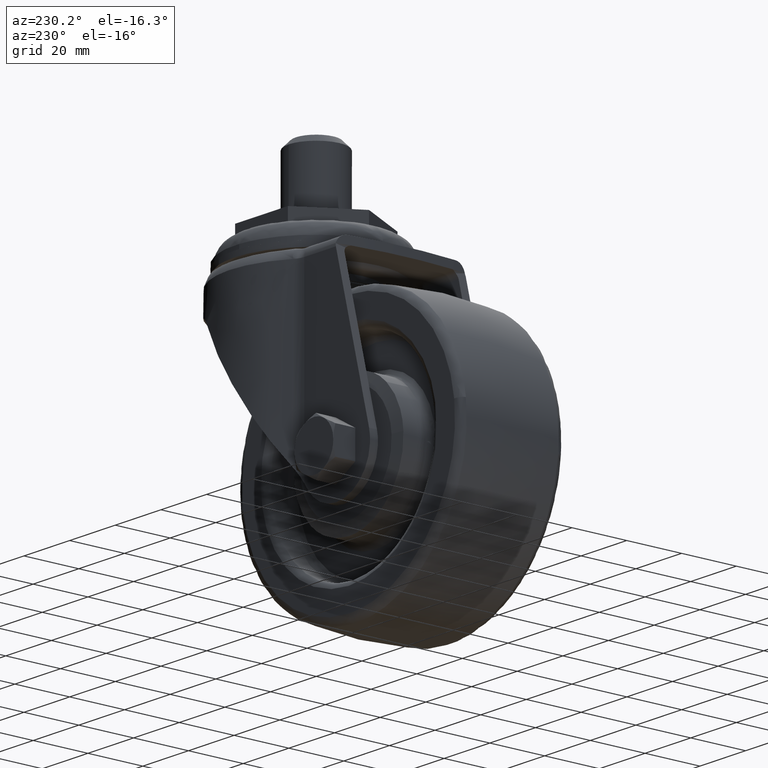
[diagram: clean part render]
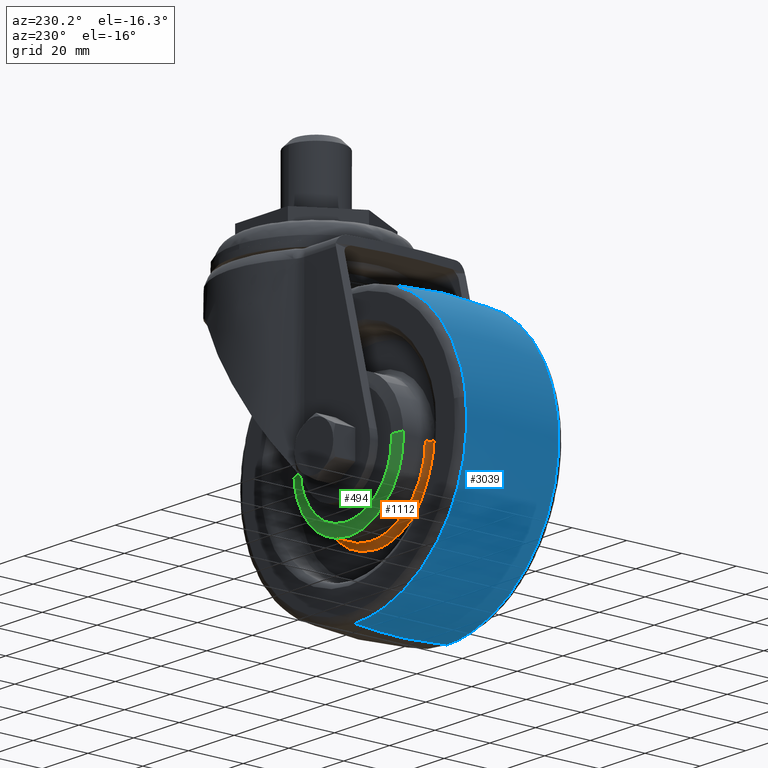
[diagram: same view with three faces highlighted in distinct colors, each labeled with its STEP entity id]
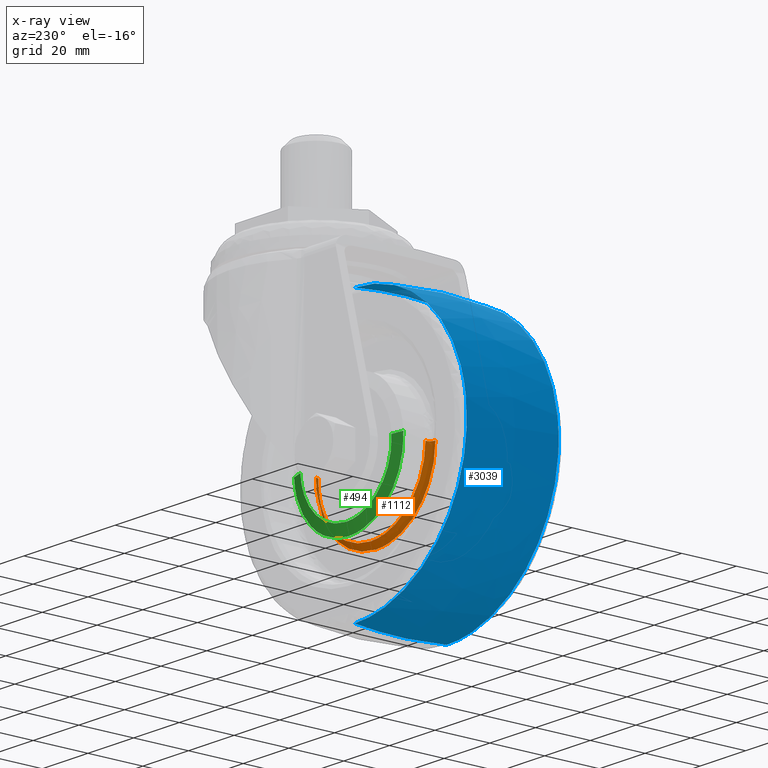
[diagram: x-ray of the same camera — body ghosted, the three highlighted faces saturated]
A machine part, auxiliary view with three faces highlighted in distinct colors.
The next image is the same camera in x-ray (body ghosted, the three faces saturated) — at least one of them is partly hidden behind the body in this view.
Their STEP definitions:

[orange] entity #1112 — the highlighted face is a freeform B-spline surface patch.
#738=CARTESIAN_POINT('',(-12.999999999999700,11.000000785135750,-73.500000000000000));
#739=VERTEX_POINT('',#738);
#753=CARTESIAN_POINT('',(-20.479490827088679,11.000000378035219,-90.908985515180206));
#754=VERTEX_POINT('',#753);
#755=CARTESIAN_POINT('',(-20.479490827088625,11.000000378035189,-90.908985515180262));
#756=CARTESIAN_POINT('',(-12.999999999999753,11.000000616475322,-83.811214268838569));
#757=CARTESIAN_POINT('',(-12.999999999999700,11.000000785135750,-73.500000000000000));
#765=(BOUNDED_CURVE()B_SPLINE_CURVE(2,(#755,#756,#757),.UNSPECIFIED.,.F.,.U.)B_SPLINE_CURVE_WITH_KNOTS((3,3),(0.121049521078662,0.250000000000000),.UNSPECIFIED.)CURVE()GEOMETRIC_REPRESENTATION_ITEM()RATIONAL_B_SPLINE_CURVE((0.853699661782680,0.848925116644772,1.0))REPRESENTATION_ITEM(''));
#766=EDGE_CURVE('',#754,#739,#765,.T.);
#796=CARTESIAN_POINT('',(-37.0,11.000000000000220,-97.499999999999986));
#797=VERTEX_POINT('',#796);
#798=CARTESIAN_POINT('',(-37.0,11.000000000000220,-97.499999999999986));
#799=CARTESIAN_POINT('',(-27.424971410987101,11.000000156618871,-97.500000000000000));
#800=CARTESIAN_POINT('',(-20.479490827088636,11.000000378035187,-90.908985515180262));
#808=(BOUNDED_CURVE()B_SPLINE_CURVE(2,(#798,#799,#800),.UNSPECIFIED.,.F.,.U.)B_SPLINE_CURVE_WITH_KNOTS((3,3),(0.0,0.121049521078662),.UNSPECIFIED.)CURVE()GEOMETRIC_REPRESENTATION_ITEM()RATIONAL_B_SPLINE_CURVE((1.0,0.858181664541776,0.853699661782680))REPRESENTATION_ITEM(''));
#809=EDGE_CURVE('',#797,#754,#808,.T.);
#811=CARTESIAN_POINT('',(-61.000000000000298,11.000000785135750,-73.500000000000000));
#812=VERTEX_POINT('',#811);
#813=CARTESIAN_POINT('',(-61.000000000000298,11.000000785135750,-73.500000000000000));
#814=CARTESIAN_POINT('',(-61.000000000000156,11.000000392567987,-97.500000000000000));
#815=CARTESIAN_POINT('',(-37.0,11.000000000000220,-97.499999999999986));
#823=(BOUNDED_CURVE()B_SPLINE_CURVE(2,(#813,#814,#815),.UNSPECIFIED.,.F.,.U.)B_SPLINE_CURVE_WITH_KNOTS((3,3),(0.750000000000000,1.0),.UNSPECIFIED.)CURVE()GEOMETRIC_REPRESENTATION_ITEM()RATIONAL_B_SPLINE_CURVE((1.0,0.707106781186548,1.0))REPRESENTATION_ITEM(''));
#824=EDGE_CURVE('',#812,#797,#823,.T.);
#990=CARTESIAN_POINT('',(-11.000000002226100,9.000000000000226,-73.500000000000000));
#991=VERTEX_POINT('',#990);
#1007=CARTESIAN_POINT('',(-11.000000002226098,9.000000000000220,-73.500000000000014));
#1008=CARTESIAN_POINT('',(-13.000000785135697,9.000000002226312,-73.500000000000014));
#1009=CARTESIAN_POINT('',(-12.999999999999849,11.000000785135752,-73.500000000000000));
#1017=(BOUNDED_CURVE()B_SPLINE_CURVE(2,(#1007,#1008,#1009),.UNSPECIFIED.,.F.,.U.)B_SPLINE_CURVE_WITH_KNOTS((3,3),(-1.726807298376659,-0.285994935133395),.UNSPECIFIED.)CURVE()GEOMETRIC_REPRESENTATION_ITEM()RATIONAL_B_SPLINE_CURVE((0.882788775808414,0.622603365904544,0.878205780589546))REPRESENTATION_ITEM(''));
#1018=EDGE_CURVE('',#991,#739,#1017,.T.);
#1023=CARTESIAN_POINT('',(-62.999999997773898,9.000000000000226,-73.500000000000000));
#1024=VERTEX_POINT('',#1023);
#1025=CARTESIAN_POINT('',(-62.999999997773891,9.000000000000219,-73.500000000000000));
#1026=CARTESIAN_POINT('',(-60.999999214864296,9.000000002226321,-73.500000000000000));
#1027=CARTESIAN_POINT('',(-61.000000000000149,11.000000785135756,-73.500000000000000));
#1035=(BOUNDED_CURVE()B_SPLINE_CURVE(2,(#1025,#1026,#1027),.UNSPECIFIED.,.F.,.U.)B_SPLINE_CURVE_WITH_KNOTS((3,3),(-1.726807298376652,-0.285994935133394),.UNSPECIFIED.)CURVE()GEOMETRIC_REPRESENTATION_ITEM()RATIONAL_B_SPLINE_CURVE((0.882788775808412,0.622603365904545,0.878205780589546))REPRESENTATION_ITEM(''));
#1036=EDGE_CURVE('',#1024,#812,#1035,.T.);
#1054=CARTESIAN_POINT('',(-63.138701300242516,9.004815309473795,-73.500000000000014));
#1055=CARTESIAN_POINT('',(-63.138701300242516,9.004815309473795,-99.638701300242516));
#1056=CARTESIAN_POINT('',(-37.000000000000007,9.004815309473795,-99.638701300242516));
#1057=CARTESIAN_POINT('',(-10.861298699757487,9.004815309473795,-99.638701300242516));
#1058=CARTESIAN_POINT('',(-10.861298699757480,9.004815309473795,-73.500000000000014));
#1059=CARTESIAN_POINT('',(-60.844520518092999,8.845328391302019,-73.500000000000014));
#1060=CARTESIAN_POINT('',(-60.844520518092985,8.845328391302020,-97.344520518092992));
#1061=CARTESIAN_POINT('',(-37.000000000000014,8.845328391302019,-97.344520518092992));
#1062=CARTESIAN_POINT('',(-13.155479481907019,8.845328391302020,-97.344520518092992));
#1063=CARTESIAN_POINT('',(-13.155479481907017,8.845328391302019,-73.500000000000014));
#1064=CARTESIAN_POINT('',(-61.004867444619862,11.139449225391965,-73.500000000000000));
#1065=CARTESIAN_POINT('',(-61.004867444619862,11.139449225391969,-97.504867444619862));
#1066=CARTESIAN_POINT('',(-37.000000000000007,11.139449225391965,-97.504867444619862));
#1067=CARTESIAN_POINT('',(-12.995132555380144,11.139449225391969,-97.504867444619876));
#1068=CARTESIAN_POINT('',(-12.995132555380138,11.139449225391965,-73.500000000000000));
#1076=(BOUNDED_SURFACE()B_SPLINE_SURFACE(2,2,((#1054,#1059,#1064),(#1055,#1060,#1065),(#1056,#1061,#1066),(#1057,#1062,#1067),(#1058,#1063,#1068)),.UNSPECIFIED.,.F.,.F.,.U.)B_SPLINE_SURFACE_WITH_KNOTS((3,2,3),(3,3),(0.0,43.308018325518809,86.616036651037618),(0.0,3.644741871542545),.UNSPECIFIED.)GEOMETRIC_REPRESENTATION_ITEM()RATIONAL_B_SPLINE_SURFACE(((0.910068213900272,0.595552862372997,0.905027350001820),(0.643515405391212,0.421119467539005,0.639950976345578),(0.910068213900272,0.595552862372997,0.905027350001820),(0.643515405391212,0.421119467539005,0.639950976345578),(0.910068213900272,0.595552862372997,0.905027350001820)))REPRESENTATION_ITEM('')SURFACE());
#1077=CARTESIAN_POINT('',(-37.0,9.000000000000220,-99.499999999999986));
#1078=VERTEX_POINT('',#1077);
#1079=CARTESIAN_POINT('',(-37.0,9.000000000000220,-99.499999999999986));
#1080=CARTESIAN_POINT('',(-11.000000001113047,9.000000000000224,-99.499999999999986));
#1081=CARTESIAN_POINT('',(-11.000000002226100,9.000000000000226,-73.500000000000000));
#1089=(BOUNDED_CURVE()B_SPLINE_CURVE(2,(#1079,#1080,#1081),.UNSPECIFIED.,.F.,.U.)B_SPLINE_CURVE_WITH_KNOTS((3,3),(0.0,0.250000000000000),.UNSPECIFIED.)CURVE()GEOMETRIC_REPRESENTATION_ITEM()RATIONAL_B_SPLINE_CURVE((1.0,0.707106781186547,1.0))REPRESENTATION_ITEM(''));
#1090=EDGE_CURVE('',#1078,#991,#1089,.T.);
#1091=ORIENTED_EDGE('',*,*,#1090,.F.);
#1092=CARTESIAN_POINT('',(-62.999999997773898,9.000000000000226,-73.500000000000000));
#1093=CARTESIAN_POINT('',(-62.999999998886956,9.000000000000224,-99.499999999999986));
#1094=CARTESIAN_POINT('',(-37.0,9.000000000000220,-99.499999999999986));
#1102=(BOUNDED_CURVE()B_SPLINE_CURVE(2,(#1092,#1093,#1094),.UNSPECIFIED.,.F.,.U.)B_SPLINE_CURVE_WITH_KNOTS((3,3),(0.750000000000000,1.0),.UNSPECIFIED.)CURVE()GEOMETRIC_REPRESENTATION_ITEM()RATIONAL_B_SPLINE_CURVE((1.0,0.707106781186547,1.0))REPRESENTATION_ITEM(''));
#1103=EDGE_CURVE('',#1024,#1078,#1102,.T.);
#1104=ORIENTED_EDGE('',*,*,#1103,.F.);
#1105=ORIENTED_EDGE('',*,*,#1036,.T.);
#1106=ORIENTED_EDGE('',*,*,#824,.T.);
#1107=ORIENTED_EDGE('',*,*,#809,.T.);
#1108=ORIENTED_EDGE('',*,*,#766,.T.);
#1109=ORIENTED_EDGE('',*,*,#1018,.F.);
#1110=EDGE_LOOP('',(#1091,#1104,#1105,#1106,#1107,#1108,#1109));
#1111=FACE_OUTER_BOUND('',#1110,.T.);
#1112=ADVANCED_FACE('',(#1111),#1076,.F.);

[blue] entity #3039 — the highlighted face is a freeform B-spline surface patch.
#2759=CARTESIAN_POINT('',(-37.0,16.779649867001449,-24.441476760499491));
#2760=VERTEX_POINT('',#2759);
#2791=CARTESIAN_POINT('',(-85.671681510103070,16.779649936100860,-67.351336726865696));
#2792=VERTEX_POINT('',#2791);
#2806=CARTESIAN_POINT('',(-37.0,16.779649867001449,-24.441476760499491));
#2807=CARTESIAN_POINT('',(-80.250905536474022,16.779649901544875,-24.441476722277141));
#2808=CARTESIAN_POINT('',(-85.671681510103070,16.779649936100864,-67.351336726865696));
#2816=(BOUNDED_CURVE()B_SPLINE_CURVE(2,(#2806,#2807,#2808),.UNSPECIFIED.,.F.,.U.)B_SPLINE_CURVE_WITH_KNOTS((3,3),(0.500000000000000,0.728321257017728),.UNSPECIFIED.)CURVE()GEOMETRIC_REPRESENTATION_ITEM()RATIONAL_B_SPLINE_CURVE((1.0,0.732505008434177,0.953608358630395))REPRESENTATION_ITEM(''));
#2817=EDGE_CURVE('',#2760,#2792,#2816,.T.);
#2845=CARTESIAN_POINT('',(-37.0,16.779649867030152,-122.558523239497300));
#2846=VERTEX_POINT('',#2845);
#2860=CARTESIAN_POINT('',(-85.671681510103070,16.779649936100864,-67.351336726865696));
#2861=CARTESIAN_POINT('',(-86.058522572680999,16.779649934185745,-70.413499338433269));
#2862=CARTESIAN_POINT('',(-86.058522553645460,16.779649932013349,-73.499999928078509));
#2863=CARTESIAN_POINT('',(-86.058522251084426,16.779649897484266,-122.558523205799740));
#2864=CARTESIAN_POINT('',(-37.0,16.779649867030152,-122.558523239497300));
#2872=(BOUNDED_CURVE()B_SPLINE_CURVE(2,(#2860,#2861,#2862,#2863,#2864),.UNSPECIFIED.,.F.,.U.)B_SPLINE_CURVE_WITH_KNOTS((3,2,3),(0.728321257017728,0.750000000000000,1.0),.UNSPECIFIED.)CURVE()GEOMETRIC_REPRESENTATION_ITEM()RATIONAL_B_SPLINE_CURVE((0.953608358630395,0.974601772752371,1.0,0.707106781186547,1.0))REPRESENTATION_ITEM(''));
#2873=EDGE_CURVE('',#2792,#2846,#2872,.T.);
#2915=CARTESIAN_POINT('',(-37.0,-16.779637920549199,-122.558524584321300));
#2916=VERTEX_POINT('',#2915);
#2917=CARTESIAN_POINT('',(-37.0,-16.779637920549199,-122.558524584321300));
#2918=CARTESIAN_POINT('',(-37.000000000000043,-12.776367559165900,-123.009180097572300));
#2919=CARTESIAN_POINT('',(-36.999999999999950,-1.586281364282039,-123.814258282421310));
#2920=CARTESIAN_POINT('',(-37.000000000000057,9.643407289933570,-123.362239167050400));
#2921=CARTESIAN_POINT('',(-37.0,16.779649867030152,-122.558523239497300));
#2922=B_SPLINE_CURVE_WITH_KNOTS('',3,(#2917,#2918,#2919,#2920,#2921),.UNSPECIFIED.,.F.,.U.,(4,1,4),(-2.801762E-009,12.085685451898700,33.629693436592888),.UNSPECIFIED.);
#2923=EDGE_CURVE('',#2916,#2846,#2922,.T.);
#2927=CARTESIAN_POINT('',(-37.0,-16.779637920490050,-24.441475415672009));
#2928=VERTEX_POINT('',#2927);
#2929=CARTESIAN_POINT('',(-37.0,-16.779637920490050,-24.441475415672009));
#2930=CARTESIAN_POINT('',(-36.999999999999979,-11.035836471647450,-23.794740682324061));
#2931=CARTESIAN_POINT('',(-37.000000000000128,0.176256226108277,-23.185630177677631));
#2932=CARTESIAN_POINT('',(-37.0,11.383937440151660,-23.833968678960542));
#2933=CARTESIAN_POINT('',(-37.0,16.779649867001449,-24.441476760499491));
#2934=B_SPLINE_CURVE_WITH_KNOTS('',3,(#2929,#2930,#2931,#2932,#2933),.UNSPECIFIED.,.F.,.U.,(4,1,4),(-2.802167E-009,17.340285091781460,33.629693436504482),.UNSPECIFIED.);
#2935=EDGE_CURVE('',#2928,#2760,#2934,.T.);
#2970=CARTESIAN_POINT('',(-37.000000000000007,-18.465704698484352,-24.640946697930492));
#2971=CARTESIAN_POINT('',(-37.0,-9.268100377648732,-23.500000000000007));
#2972=CARTESIAN_POINT('',(-37.0,-4.867810E-015,-23.500000000000011));
#2973=CARTESIAN_POINT('',(-37.000000000000014,9.268104124571597,-23.500000000000007));
#2974=CARTESIAN_POINT('',(-37.000000000000007,18.465712107046045,-24.640947616949777));
#2975=CARTESIAN_POINT('',(-85.859053302069498,-18.465704698484348,-24.640946697930502));
#2976=CARTESIAN_POINT('',(-86.999999999999986,-9.268100377648734,-23.500000000000018));
#2977=CARTESIAN_POINT('',(-86.999999999999986,-4.867810E-015,-23.500000000000018));
#2978=CARTESIAN_POINT('',(-86.999999999999972,9.268104124571599,-23.500000000000018));
#2979=CARTESIAN_POINT('',(-85.859052383050226,18.465712107046055,-24.640947616949781));
#2980=CARTESIAN_POINT('',(-85.859053302069526,-18.465704698484352,-73.500000000000000));
#2981=CARTESIAN_POINT('',(-86.999999999999986,-9.268100377648732,-73.500000000000000));
#2982=CARTESIAN_POINT('',(-87.0,-4.867810E-015,-73.500000000000000));
#2983=CARTESIAN_POINT('',(-87.0,9.268104124571597,-73.500000000000000));
#2984=CARTESIAN_POINT('',(-85.859052383050226,18.465712107046045,-73.500000000000000));
#2985=CARTESIAN_POINT('',(-85.859053302069498,-18.465704698484348,-122.359053302069530));
#2986=CARTESIAN_POINT('',(-86.999999999999986,-9.268100377648734,-123.500000000000000));
#2987=CARTESIAN_POINT('',(-86.999999999999986,-4.867810E-015,-123.499999999999990));
#2988=CARTESIAN_POINT('',(-86.999999999999972,9.268104124571599,-123.499999999999970));
#2989=CARTESIAN_POINT('',(-85.859052383050226,18.465712107046055,-122.359052383050210));
#2990=CARTESIAN_POINT('',(-37.000000000000007,-18.465704698484352,-122.359053302069500));
#2991=CARTESIAN_POINT('',(-37.0,-9.268100377648732,-123.500000000000000));
#2992=CARTESIAN_POINT('',(-37.0,-4.867810E-015,-123.500000000000000));
#2993=CARTESIAN_POINT('',(-37.000000000000014,9.268104124571597,-123.500000000000030));
#2994=CARTESIAN_POINT('',(-37.000000000000007,18.465712107046045,-122.359052383050180));
#3002=(BOUNDED_SURFACE()B_SPLINE_SURFACE(2,2,((#2970,#2975,#2980,#2985,#2990),(#2971,#2976,#2981,#2986,#2991),(#2972,#2977,#2982,#2987,#2992),(#2973,#2978,#2983,#2988,#2993),(#2974,#2979,#2984,#2989,#2994)),.UNSPECIFIED.,.F.,.F.,.U.)B_SPLINE_SURFACE_WITH_KNOTS((3,2,3),(3,2,3),(0.0,18.709207696205851,37.418422857757200),(0.0,82.842712474619006,165.685424949238010),.UNSPECIFIED.)GEOMETRIC_REPRESENTATION_ITEM()RATIONAL_B_SPLINE_SURFACE(((0.977858070588099,0.691450072750839,0.977858070588099,0.691450072750839,0.977858070588099),(0.986984865199306,0.697903691110920,0.986984865199306,0.697903691110920,0.986984865199306),(1.0,0.707106781186548,1.0,0.707106781186548,1.0),(0.986984860006009,0.697903687438704,0.986984860006009,0.697903687438704,0.986984860006009),(0.977858063304555,0.691450067600595,0.977858063304555,0.691450067600595,0.977858063304555)))REPRESENTATION_ITEM('')SURFACE());
#3003=ORIENTED_EDGE('',*,*,#2923,.F.);
#3004=CARTESIAN_POINT('',(-85.868843852252752,-16.779638064483009,-77.809849971039228));
#3005=VERTEX_POINT('',#3004);
#3006=CARTESIAN_POINT('',(-85.868843852252752,-16.779638064483009,-77.809849971039228));
#3007=CARTESIAN_POINT('',(-81.922360370646729,-16.779637992529587,-122.558524640269440));
#3008=CARTESIAN_POINT('',(-37.0,-16.779637920549199,-122.558524584321300));
#3016=(BOUNDED_CURVE()B_SPLINE_CURVE(2,(#3006,#3007,#3008),.UNSPECIFIED.,.F.,.U.)B_SPLINE_CURVE_WITH_KNOTS((3,3),(0.765281544351816,1.0),.UNSPECIFIED.)CURVE()GEOMETRIC_REPRESENTATION_ITEM()RATIONAL_B_SPLINE_CURVE((0.966381852339108,0.725010224041123,1.0))REPRESENTATION_ITEM(''));
#3017=EDGE_CURVE('',#3005,#2916,#3016,.T.);
#3018=ORIENTED_EDGE('',*,*,#3017,.F.);
#3019=CARTESIAN_POINT('',(-37.0,-16.779637920490050,-24.441475415672009));
#3020=CARTESIAN_POINT('',(-86.058522565243706,-16.779637986401720,-24.441475466903071));
#3021=CARTESIAN_POINT('',(-86.058523199632262,-16.779638058411681,-73.500000107175850));
#3022=CARTESIAN_POINT('',(-86.058523227552129,-16.779638061580890,-75.659098998873745));
#3023=CARTESIAN_POINT('',(-85.868843852252752,-16.779638064483009,-77.809849971039228));
#3031=(BOUNDED_CURVE()B_SPLINE_CURVE(2,(#3019,#3020,#3021,#3022,#3023),.UNSPECIFIED.,.F.,.U.)B_SPLINE_CURVE_WITH_KNOTS((3,2,3),(0.500000000000000,0.750000000000000,0.765281544351816),.UNSPECIFIED.)CURVE()GEOMETRIC_REPRESENTATION_ITEM()RATIONAL_B_SPLINE_CURVE((1.0,0.707106781186547,1.0,0.982096557145425,0.966381852339108))REPRESENTATION_ITEM(''));
#3032=EDGE_CURVE('',#2928,#3005,#3031,.T.);
#3033=ORIENTED_EDGE('',*,*,#3032,.F.);
#3034=ORIENTED_EDGE('',*,*,#2935,.T.);
#3035=ORIENTED_EDGE('',*,*,#2817,.T.);
#3036=ORIENTED_EDGE('',*,*,#2873,.T.);
#3037=EDGE_LOOP('',(#3003,#3018,#3033,#3034,#3035,#3036));
#3038=FACE_OUTER_BOUND('',#3037,.T.);
#3039=ADVANCED_FACE('',(#3038),#3002,.T.);

[green] entity #494 — the highlighted face is a freeform B-spline surface patch.
#192=CARTESIAN_POINT('',(-56.962695968451470,19.999999999994099,-72.279029209147126));
#193=VERTEX_POINT('',#192);
#194=CARTESIAN_POINT('',(-37.0,20.0,-93.500000000000000));
#195=VERTEX_POINT('',#194);
#196=CARTESIAN_POINT('',(-56.962695968451470,19.999999999994099,-72.279029209147126));
#197=CARTESIAN_POINT('',(-57.000000000023228,19.999999999994177,-72.888944733949430));
#198=CARTESIAN_POINT('',(-57.000000000022872,19.999999999994269,-73.499999999998593));
#199=CARTESIAN_POINT('',(-57.000000000011084,19.999999999997225,-93.499999999999318));
#200=CARTESIAN_POINT('',(-37.0,20.0,-93.500000000000000));
#208=(BOUNDED_CURVE()B_SPLINE_CURVE(2,(#196,#197,#198,#199,#200),.UNSPECIFIED.,.F.,.U.)B_SPLINE_CURVE_WITH_KNOTS((3,2,3),(0.739332962240635,0.750000000000000,1.0),.UNSPECIFIED.)CURVE()GEOMETRIC_REPRESENTATION_ITEM()RATIONAL_B_SPLINE_CURVE((0.976072041670344,0.987502787901820,1.0,0.707106781186548,1.0))REPRESENTATION_ITEM(''));
#209=EDGE_CURVE('',#193,#195,#208,.T.);
#226=CARTESIAN_POINT('',(-17.037304031548519,19.999999999994099,-74.720970790852860));
#227=VERTEX_POINT('',#226);
#243=CARTESIAN_POINT('',(-37.0,20.0,-93.500000000000000));
#244=CARTESIAN_POINT('',(-18.185878662019977,19.999999999997055,-93.500000000000753));
#245=CARTESIAN_POINT('',(-17.037304031548512,19.999999999994099,-74.720970790852860));
#253=(BOUNDED_CURVE()B_SPLINE_CURVE(2,(#243,#244,#245),.UNSPECIFIED.,.F.,.U.)B_SPLINE_CURVE_WITH_KNOTS((3,3),(0.0,0.239332962240635),.UNSPECIFIED.)CURVE()GEOMETRIC_REPRESENTATION_ITEM()RATIONAL_B_SPLINE_CURVE((1.0,0.719603993284728,0.976072041670344))REPRESENTATION_ITEM(''));
#254=EDGE_CURVE('',#195,#227,#253,.T.);
#361=CARTESIAN_POINT('',(-13.044764837834190,18.999999999983022,-74.965164949278602));
#362=VERTEX_POINT('',#361);
#380=CARTESIAN_POINT('',(-17.037304031548519,19.999999999994099,-74.720970790852860));
#381=CARTESIAN_POINT('',(-13.044764837834190,18.999999999983022,-74.965164949278602));
#382=QUASI_UNIFORM_CURVE('',1,(#380,#381),.UNSPECIFIED.,.F.,.U.);
#383=EDGE_CURVE('',#227,#362,#382,.T.);
#387=CARTESIAN_POINT('',(-60.955235162165813,18.999999999983022,-72.034835050721398));
#388=VERTEX_POINT('',#387);
#389=CARTESIAN_POINT('',(-56.962695968451470,19.999999999994099,-72.279029209147126));
#390=CARTESIAN_POINT('',(-60.955235162165813,18.999999999983022,-72.034835050721398));
#391=QUASI_UNIFORM_CURVE('',1,(#389,#390),.UNSPECIFIED.,.F.,.U.);
#392=EDGE_CURVE('',#193,#388,#391,.T.);
#425=CARTESIAN_POINT('',(-56.862882488595133,20.024999999999999,-72.285134063256351));
#426=CARTESIAN_POINT('',(-58.077748425338783,20.025000000000009,-92.148016551851484));
#427=CARTESIAN_POINT('',(-38.214865936743649,20.024999999999999,-93.362882488595133));
#428=CARTESIAN_POINT('',(-18.351983448148523,20.025000000000009,-94.577748425338797));
#429=CARTESIAN_POINT('',(-17.137117511404870,20.024999999999999,-74.714865936743649));
#430=CARTESIAN_POINT('',(-61.057543978963039,18.974374999999998,-72.028577575861107));
#431=CARTESIAN_POINT('',(-62.528966403101947,18.974375000000002,-96.086121554824146));
#432=CARTESIAN_POINT('',(-38.471422424138893,18.974374999999998,-97.557543978963039));
#433=CARTESIAN_POINT('',(-14.413878445175845,18.974375000000002,-99.028966403101933));
#434=CARTESIAN_POINT('',(-12.942456021036961,18.974374999999998,-74.971422424138893));
#442=(BOUNDED_SURFACE()B_SPLINE_SURFACE(2,1,((#425,#430),(#426,#431),(#427,#432),(#428,#433),(#429,#434)),.UNSPECIFIED.,.F.,.F.,.U.)B_SPLINE_SURFACE_WITH_KNOTS((3,2,3),(2,2),(0.0,39.934329548390103,79.868659096780192),(0.0,4.331837847914573),.UNSPECIFIED.)GEOMETRIC_REPRESENTATION_ITEM()RATIONAL_B_SPLINE_SURFACE(((1.0,1.0),(0.707106781186548,0.707106781186548),(1.0,1.0),(0.707106781186548,0.707106781186548),(1.0,1.0)))REPRESENTATION_ITEM('')SURFACE());
#443=CARTESIAN_POINT('',(-37.0,19.0,-97.500000000000000));
#444=VERTEX_POINT('',#443);
#445=CARTESIAN_POINT('',(-20.479491158632911,18.999999999991420,-90.908985829821034));
#446=VERTEX_POINT('',#445);
#447=CARTESIAN_POINT('',(-37.0,19.0,-97.500000000000000));
#448=CARTESIAN_POINT('',(-27.424971675905887,18.999999999996387,-97.499999999996348));
#449=CARTESIAN_POINT('',(-20.479491158632921,18.999999999991420,-90.908985829821034));
#457=(BOUNDED_CURVE()B_SPLINE_CURVE(2,(#447,#448,#449),.UNSPECIFIED.,.F.,.U.)B_SPLINE_CURVE_WITH_KNOTS((3,3),(0.0,0.121049518204366),.UNSPECIFIED.)CURVE()GEOMETRIC_REPRESENTATION_ITEM()RATIONAL_B_SPLINE_CURVE((1.0,0.858181667909222,0.853699661995528))REPRESENTATION_ITEM(''));
#458=EDGE_CURVE('',#444,#446,#457,.T.);
#459=ORIENTED_EDGE('',*,*,#458,.F.);
#460=CARTESIAN_POINT('',(-60.955235162165799,18.999999999983014,-72.034835050721398));
#461=CARTESIAN_POINT('',(-61.000000000066805,18.999999999983267,-72.766733680610216));
#462=CARTESIAN_POINT('',(-61.000000000065768,18.999999999983519,-73.499999999995978));
#463=CARTESIAN_POINT('',(-61.000000000031889,18.999999999992006,-97.499999999998053));
#464=CARTESIAN_POINT('',(-37.0,19.0,-97.500000000000000));
#472=(BOUNDED_CURVE()B_SPLINE_CURVE(2,(#460,#461,#462,#463,#464),.UNSPECIFIED.,.F.,.U.)B_SPLINE_CURVE_WITH_KNOTS((3,2,3),(0.739332962238814,0.750000000000000,1.0),.UNSPECIFIED.)CURVE()GEOMETRIC_REPRESENTATION_ITEM()RATIONAL_B_SPLINE_CURVE((0.976072041666442,0.987502787899687,1.0,0.707106781186548,1.0))REPRESENTATION_ITEM(''));
#473=EDGE_CURVE('',#388,#444,#472,.T.);
#474=ORIENTED_EDGE('',*,*,#473,.F.);
#475=ORIENTED_EDGE('',*,*,#392,.F.);
#476=ORIENTED_EDGE('',*,*,#209,.T.);
#477=ORIENTED_EDGE('',*,*,#254,.T.);
#478=ORIENTED_EDGE('',*,*,#383,.T.);
#479=CARTESIAN_POINT('',(-20.479491158632921,18.999999999991420,-90.908985829821034));
#480=CARTESIAN_POINT('',(-13.621908707270206,18.999999999986557,-84.401383800335523));
#481=CARTESIAN_POINT('',(-13.044764837834187,18.999999999983014,-74.965164949278602));
#489=(BOUNDED_CURVE()B_SPLINE_CURVE(2,(#479,#480,#481),.UNSPECIFIED.,.F.,.U.)B_SPLINE_CURVE_WITH_KNOTS((3,3),(0.121049518204366,0.239332962238814),.UNSPECIFIED.)CURVE()GEOMETRIC_REPRESENTATION_ITEM()RATIONAL_B_SPLINE_CURVE((0.853699661995528,0.849320073348513,0.976072041666442))REPRESENTATION_ITEM(''));
#490=EDGE_CURVE('',#446,#362,#489,.T.);
#491=ORIENTED_EDGE('',*,*,#490,.F.);
#492=EDGE_LOOP('',(#459,#474,#475,#476,#477,#478,#491));
#493=FACE_OUTER_BOUND('',#492,.T.);
#494=ADVANCED_FACE('',(#493),#442,.T.);